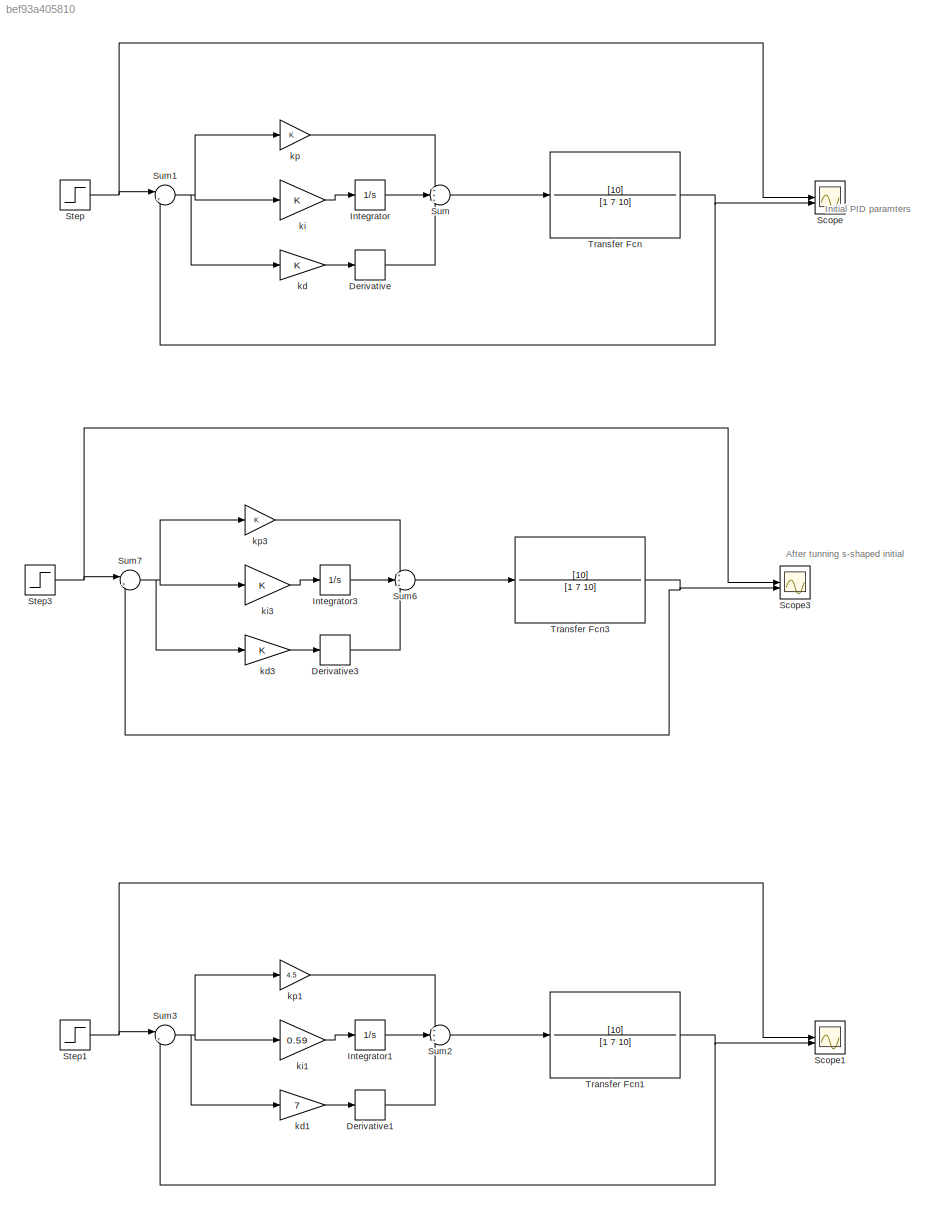
MODEL slx_bef93a405810
KIND model
CONFIG AbsTol = auto
CONFIG EnableMultiTasking = off
CONFIG FixedStep = auto
CONFIG MaxStep = auto
CONFIG MinStep = auto
CONFIG RelTol = 1e-3
CONFIG SampleTimeConstraint = Unconstrained
CONFIG SolverName = VariableStepAuto
CONFIG StartTime = 0.0
CONFIG StopTime = 50
BLOCK [Derivative] Derivative
BLOCK [Derivative] Derivative1
BLOCK [Derivative] Derivative3
BLOCK [Integrator] Integrator
BLOCK [Integrator] Integrator1
BLOCK [Integrator] Integrator3
BLOCK [Scope] Scope
  Floating = off
  NumInputPorts = 2
  ScopeSpecificationString = Simulink.scopes.TimeScopeBlockCfg('CurrentConfiguration', extmgr.ConfigurationSet(extmgr.Configuration('Core','General UI',true),extmgr.Configuration('Core','Source UI',true),extmgr.Configuration('Sources','WiredSimulink',true),extmgr.Configuration('Visuals','Time Domain',true,'SerializedDisplays',{struct('MinYLimReal','-0.12501','MaxYLimReal','1.12511','YLabelReal','','MinYLimMag','0.00000','MaxY...<+1396ch>
BLOCK [Scope] Scope1
  Floating = off
  NumInputPorts = 2
  ScopeSpecificationString = Simulink.scopes.TimeScopeBlockCfg('CurrentConfiguration', extmgr.ConfigurationSet(extmgr.Configuration('Core','General UI',true),extmgr.Configuration('Core','Source UI',true),extmgr.Configuration('Sources','WiredSimulink',true,'DataLoggingVariableName','ScopeData1'),extmgr.Configuration('Visuals','Time Domain',true,'SerializedDisplays',{struct('MinYLimReal','-0.12501','MaxYLimReal','1.12511','YLab...<+1435ch>
BLOCK [Scope] Scope3
  Floating = off
  NumInputPorts = 2
  ScopeSpecificationString = Simulink.scopes.TimeScopeBlockCfg('CurrentConfiguration', extmgr.ConfigurationSet(extmgr.Configuration('Core','General UI',true),extmgr.Configuration('Core','Source UI',true),extmgr.Configuration('Sources','WiredSimulink',true,'DataLoggingVariableName','ScopeData3'),extmgr.Configuration('Visuals','Time Domain',true,'SerializedDisplays',{struct('MinYLimReal','-0.12501','MaxYLimReal','1.12511','YLab...<+1435ch>
BLOCK [Step] Step
  SampleTime = 0
BLOCK [Step] Step1
  SampleTime = 0
BLOCK [Step] Step3
  SampleTime = 0
BLOCK [Sum] Sum
  Inputs = +++
BLOCK [Sum] Sum1
  Inputs = |+-
BLOCK [Sum] Sum2
  Inputs = +++
BLOCK [Sum] Sum3
  Inputs = |+-
BLOCK [Sum] Sum6
  Inputs = +++
BLOCK [Sum] Sum7
  Inputs = |+-
BLOCK [TransferFcn] Transfer Fcn
  Denominator = [1 7 10]
  Numerator = [10]
BLOCK [TransferFcn] Transfer Fcn1
  Denominator = [1 7 10]
  Numerator = [10]
BLOCK [TransferFcn] Transfer Fcn3
  Denominator = [1 7 10]
  Numerator = [10]
BLOCK [Gain] kd
BLOCK [Gain] kd1
  Gain = 7
BLOCK [Gain] kd3
BLOCK [Gain] ki
BLOCK [Gain] ki1
  Gain = 0.59
BLOCK [Gain] ki3
BLOCK [Gain] kp
BLOCK [Gain] kp1
  Gain = 4.5
BLOCK [Gain] kp3
ANNOTATION (root): Initial PID paramters
ANNOTATION (root): After tunning s-shaped initial
LINE Derivative1:1 -> Sum2:3
LINE Derivative3:1 -> Sum6:3
LINE Derivative:1 -> Sum:3
LINE Integrator1:1 -> Sum2:2
LINE Integrator3:1 -> Sum6:2
LINE Integrator:1 -> Sum:2
NET Step1:1 -> Scope1:1, Sum3:1
NET Step3:1 -> Scope3:1, Sum7:1
NET Step:1 -> Scope:1, Sum1:1
NET Sum1:1 -> kd:1, ki:1, kp:1
LINE Sum2:1 -> Transfer Fcn1:1
NET Sum3:1 -> kd1:1, ki1:1, kp1:1
LINE Sum6:1 -> Transfer Fcn3:1
NET Sum7:1 -> kd3:1, ki3:1, kp3:1
LINE Sum:1 -> Transfer Fcn:1
NET Transfer Fcn1:1 -> Scope1:2, Sum3:2
NET Transfer Fcn3:1 -> Scope3:2, Sum7:2
NET Transfer Fcn:1 -> Scope:2, Sum1:2
LINE kd1:1 -> Derivative1:1
LINE kd3:1 -> Derivative3:1
LINE kd:1 -> Derivative:1
LINE ki1:1 -> Integrator1:1
LINE ki3:1 -> Integrator3:1
LINE ki:1 -> Integrator:1
LINE kp1:1 -> Sum2:1
LINE kp3:1 -> Sum6:1
LINE kp:1 -> Sum:1
note: NET lines group one-source signal fan-out (src -> all destinations, sorted); 1:1 wires keep LINE
